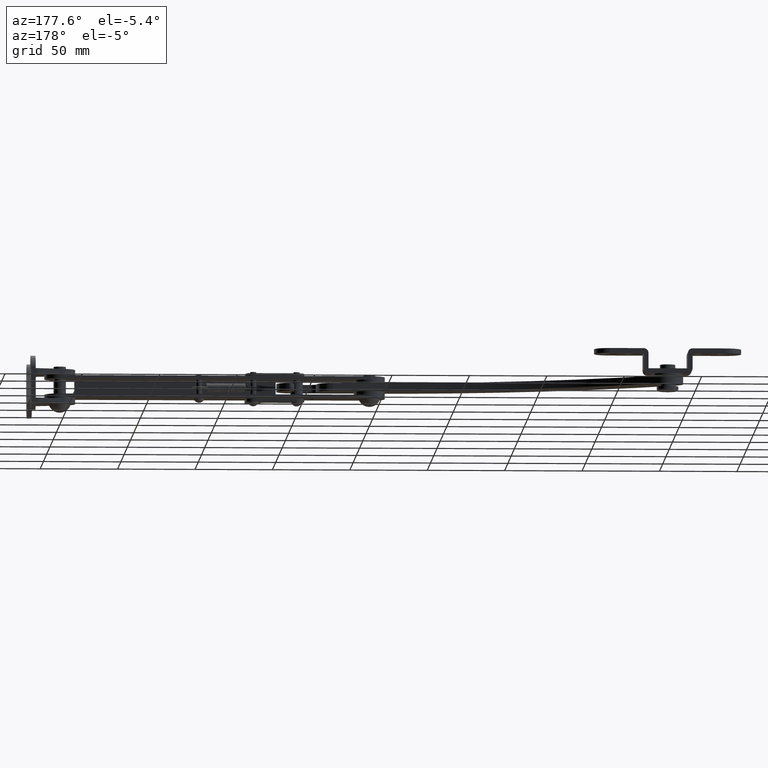
[diagram: clean part render]
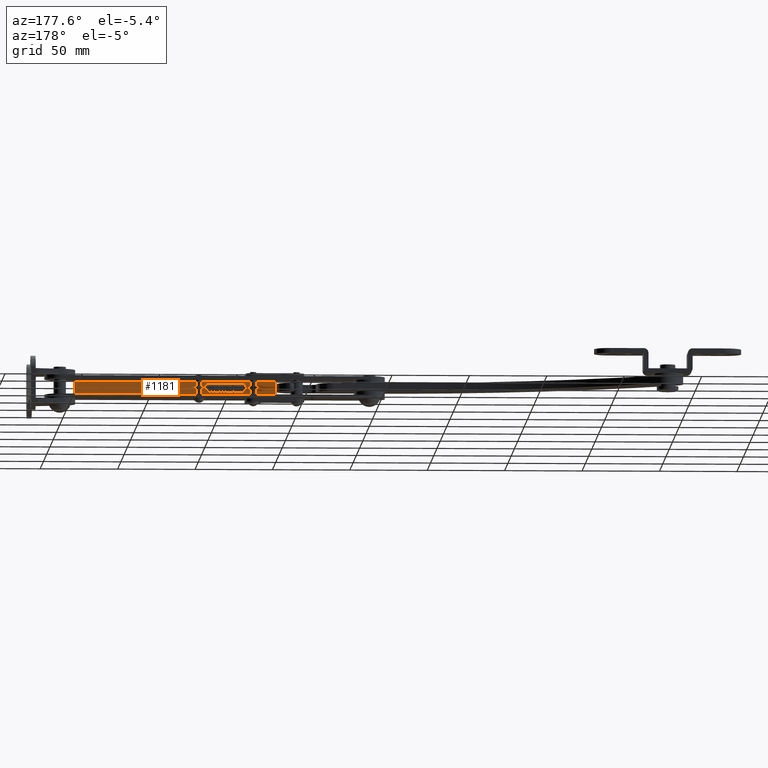
[diagram: same view with one face highlighted and labeled with its STEP entity id]
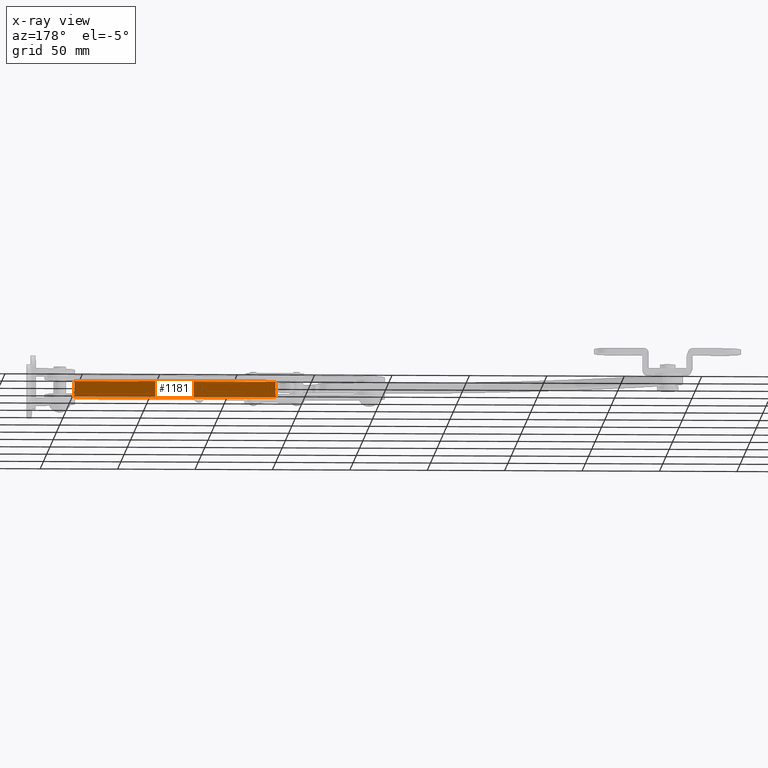
[diagram: x-ray of the same camera — body ghosted, the highlighted face saturated]
A machine part, auxiliary view. The second image highlights one B-rep face of the part: STEP entity #1181.
The next image is the same camera in x-ray: the body ghosted, the highlighted face saturated — about 0% of this face is hidden behind the body in this view.
In plain terms, the highlighted planar face has unit normal (0, 1, 0).
Its self-contained STEP definition (entity closure, byte-faithful):
#238 = PLANE ( 'NONE',  #14609 ) ;
#766 = DIRECTION ( 'NONE',  ( -0.0000000000000000000, -0.0000000000000000000, -1.000000000000000000 ) ) ;
#1032 = VERTEX_POINT ( 'NONE', #9327 ) ;
#1181 = ADVANCED_FACE ( 'NONE', ( #8717 ), #238, .T. ) ;
#1492 = CARTESIAN_POINT ( 'NONE',  ( -10.00000000000000000, -11.00000000000000000, 0.0000000000000000000 ) ) ;
#1735 = VECTOR ( 'NONE', #4176, 1000.000000000000000 ) ;
#2016 = EDGE_CURVE ( 'NONE', #3756, #14328, #2839, .T. ) ;
#2152 = CARTESIAN_POINT ( 'NONE',  ( -140.0000000000000000, -11.00000000000000000, 5.000000000000420100 ) ) ;
#2414 = VECTOR ( 'NONE', #16684, 1000.000000000000000 ) ;
#2839 = LINE ( 'NONE', #14000, #2414 ) ;
#3433 = VECTOR ( 'NONE', #8658, 1000.000000000000000 ) ;
#3756 = VERTEX_POINT ( 'NONE', #2152 ) ;
#4176 = DIRECTION ( 'NONE',  ( -0.0000000000000000000, -0.0000000000000000000, 1.000000000000000000 ) ) ;
#4502 = ORIENTED_EDGE ( 'NONE', *, *, #9568, .F. ) ;
#5262 = LINE ( 'NONE', #1492, #1735 ) ;
#5583 = DIRECTION ( 'NONE',  ( -1.000000000000000000, 0.0000000000000000000, 0.0000000000000000000 ) ) ;
#6187 = ORIENTED_EDGE ( 'NONE', *, *, #13148, .T. ) ;
#6431 = VECTOR ( 'NONE', #766, 1000.000000000000000 ) ;
#7407 = LINE ( 'NONE', #15309, #3433 ) ;
#8658 = DIRECTION ( 'NONE',  ( -1.000000000000000000, -0.0000000000000000000, -0.0000000000000000000 ) ) ;
#8717 = FACE_OUTER_BOUND ( 'NONE', #16333, .T. ) ;
#9327 = CARTESIAN_POINT ( 'NONE',  ( -10.00000000000000000, -11.00000000000000000, -5.000000000000110100 ) ) ;
#9568 = EDGE_CURVE ( 'NONE', #3756, #16600, #13551, .T. ) ;
#10102 = CARTESIAN_POINT ( 'NONE',  ( -140.0000000000000000, -11.00000000000000000, 0.0000000000000000000 ) ) ;
#10246 = CARTESIAN_POINT ( 'NONE',  ( -140.0000000000000000, -11.00000000000000000, -5.000000000000119900 ) ) ;
#10921 = CARTESIAN_POINT ( 'NONE',  ( 0.0000000000000000000, -11.00000000000000000, 0.0000000000000000000 ) ) ;
#13148 = EDGE_CURVE ( 'NONE', #1032, #16600, #7407, .T. ) ;
#13551 = LINE ( 'NONE', #10102, #6431 ) ;
#13623 = DIRECTION ( 'NONE',  ( 0.0000000000000000000, 1.000000000000000000, 0.0000000000000000000 ) ) ;
#14000 = CARTESIAN_POINT ( 'NONE',  ( 1.110248767405484000E-014, -11.00000000000000000, 5.000000000000110100 ) ) ;
#14179 = EDGE_CURVE ( 'NONE', #1032, #14328, #5262, .T. ) ;
#14328 = VERTEX_POINT ( 'NONE', #16334 ) ;
#14542 = ORIENTED_EDGE ( 'NONE', *, *, #14179, .F. ) ;
#14609 = AXIS2_PLACEMENT_3D ( 'NONE', #10921, #13623, #5583 ) ;
#15309 = CARTESIAN_POINT ( 'NONE',  ( 0.0000000000000000000, -11.00000000000000000, -5.000000000000110100 ) ) ;
#15787 = ORIENTED_EDGE ( 'NONE', *, *, #2016, .T. ) ;
#16333 = EDGE_LOOP ( 'NONE', ( #15787, #14542, #6187, #4502 ) ) ;
#16334 = CARTESIAN_POINT ( 'NONE',  ( -10.00000000000000000, -11.00000000000000000, 5.000000000000139400 ) ) ;
#16600 = VERTEX_POINT ( 'NONE', #10246 ) ;
#16684 = DIRECTION ( 'NONE',  ( 1.000000000000000000, -0.0000000000000000000, -2.220497534810920000E-015 ) ) ;